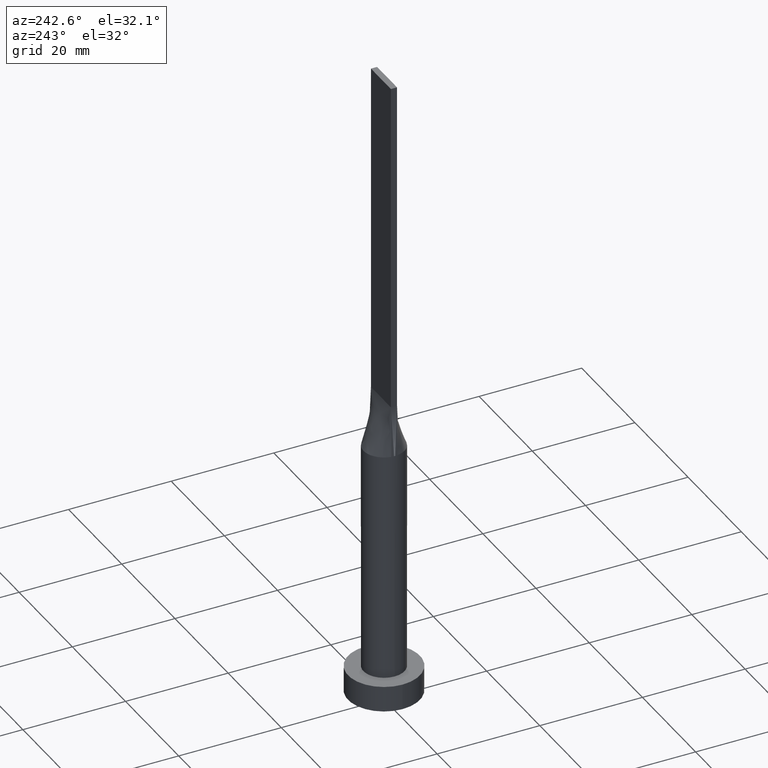
[diagram: clean part render]
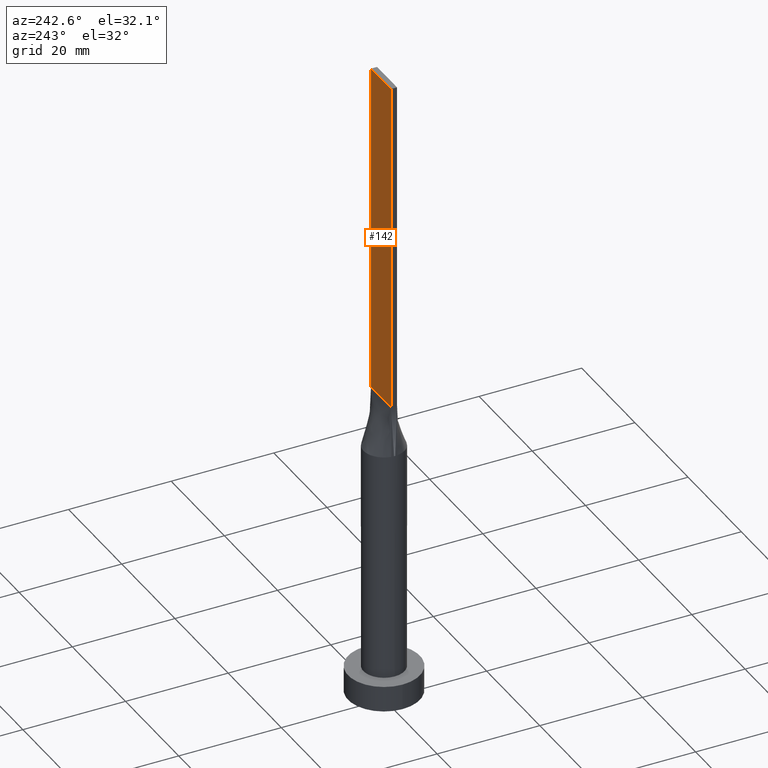
[diagram: same view with one face highlighted and labeled with its STEP entity id]
A machine part, auxiliary view. The second image highlights one B-rep face of the part: STEP entity #142.
In plain terms, the highlighted planar face has unit normal (0, -1, 0).
Its self-contained STEP definition (entity closure, byte-faithful):
#89 = CARTESIAN_POINT ( 'NONE',  ( 3.750000000000000000, 0.6000000000000001998, 60.00000000000000000 ) ) ;
#106 = VECTOR ( 'NONE', #499, 1000.000000000000000 ) ;
#112 = ORIENTED_EDGE ( 'NONE', *, *, #292, .F. ) ;
#119 = VECTOR ( 'NONE', #215, 1000.000000000000000 ) ;
#131 = CARTESIAN_POINT ( 'NONE',  ( 3.750000000000000000, 0.6000000000000001998, 125.0000000000000000 ) ) ;
#142 = ADVANCED_FACE ( 'NONE', ( #409 ), #553, .F. ) ;
#195 = VECTOR ( 'NONE', #382, 1000.000000000000000 ) ;
#198 = EDGE_CURVE ( 'NONE', #424, #437, #331, .T. ) ;
#200 = DIRECTION ( 'NONE',  ( 0.000000000000000000, -0.000000000000000000, -1.000000000000000000 ) ) ;
#202 = CARTESIAN_POINT ( 'NONE',  ( 3.750000000000000000, 0.6000000000000001998, 125.0000000000000000 ) ) ;
#208 = CARTESIAN_POINT ( 'NONE',  ( 3.750000000000000000, 0.6000000000000001998, 125.0000000000000000 ) ) ;
#215 = DIRECTION ( 'NONE',  ( -0.000000000000000000, -0.000000000000000000, -1.000000000000000000 ) ) ;
#254 = CARTESIAN_POINT ( 'NONE',  ( -3.750000000000000000, 0.6000000000000001998, 125.0000000000000000 ) ) ;
#268 = VECTOR ( 'NONE', #502, 1000.000000000000000 ) ;
#273 = EDGE_LOOP ( 'NONE', ( #444, #112, #521, #568 ) ) ;
#282 = VERTEX_POINT ( 'NONE', #567 ) ;
#292 = EDGE_CURVE ( 'NONE', #386, #282, #518, .T. ) ;
#304 = CARTESIAN_POINT ( 'NONE',  ( -3.750000000000000000, 0.6000000000000001998, 60.00000000000000000 ) ) ;
#322 = DIRECTION ( 'NONE',  ( 0.000000000000000000, -1.000000000000000000, 0.000000000000000000 ) ) ;
#331 = LINE ( 'NONE', #202, #268 ) ;
#332 = LINE ( 'NONE', #208, #195 ) ;
#378 = EDGE_CURVE ( 'NONE', #424, #386, #332, .T. ) ;
#382 = DIRECTION ( 'NONE',  ( -1.000000000000000000, 0.000000000000000000, 0.000000000000000000 ) ) ;
#386 = VERTEX_POINT ( 'NONE', #575 ) ;
#393 = LINE ( 'NONE', #304, #106 ) ;
#409 = FACE_OUTER_BOUND ( 'NONE', #273, .T. ) ;
#420 = CARTESIAN_POINT ( 'NONE',  ( 3.750000000000000000, 0.6000000000000001998, 125.0000000000000000 ) ) ;
#424 = VERTEX_POINT ( 'NONE', #131 ) ;
#437 = VERTEX_POINT ( 'NONE', #89 ) ;
#444 = ORIENTED_EDGE ( 'NONE', *, *, #488, .T. ) ;
#471 = AXIS2_PLACEMENT_3D ( 'NONE', #420, #322, #200 ) ;
#488 = EDGE_CURVE ( 'NONE', #437, #282, #393, .T. ) ;
#499 = DIRECTION ( 'NONE',  ( -1.000000000000000000, -0.000000000000000000, -0.000000000000000000 ) ) ;
#502 = DIRECTION ( 'NONE',  ( -0.000000000000000000, -0.000000000000000000, -1.000000000000000000 ) ) ;
#518 = LINE ( 'NONE', #254, #119 ) ;
#521 = ORIENTED_EDGE ( 'NONE', *, *, #378, .F. ) ;
#553 = PLANE ( 'NONE',  #471 ) ;
#567 = CARTESIAN_POINT ( 'NONE',  ( -3.750000000000000000, 0.6000000000000001998, 60.00000000000000000 ) ) ;
#568 = ORIENTED_EDGE ( 'NONE', *, *, #198, .T. ) ;
#575 = CARTESIAN_POINT ( 'NONE',  ( -3.750000000000000000, 0.6000000000000001998, 125.0000000000000000 ) ) ;